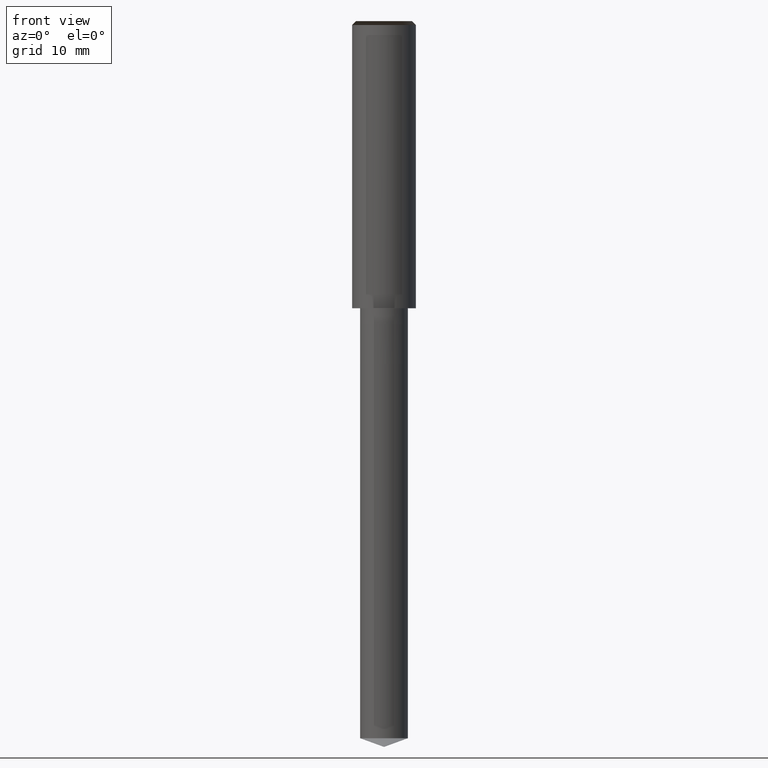
[diagram: clean part render]
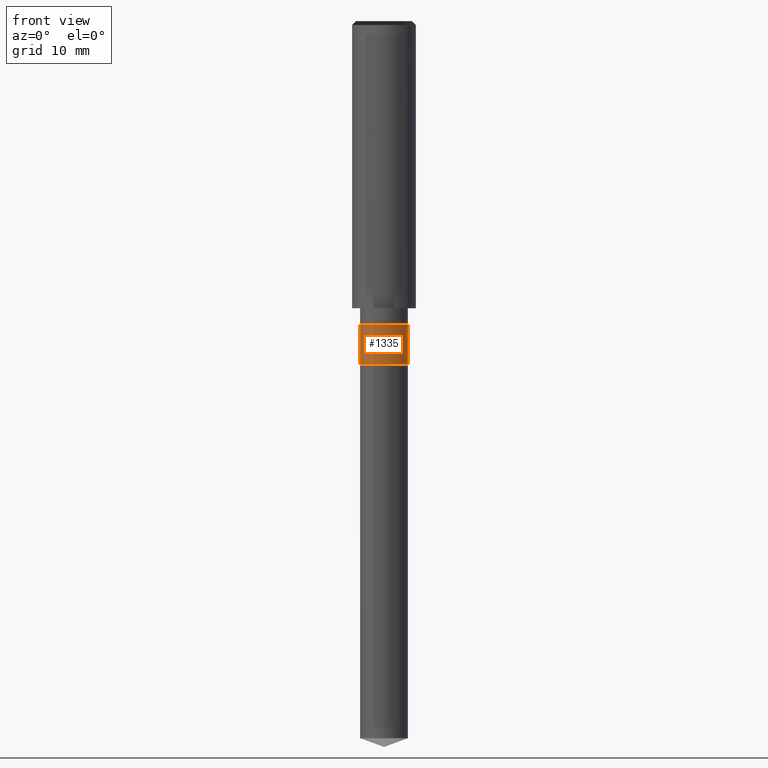
[diagram: same view with one face highlighted and labeled with its STEP entity id]
A machine part, front view. The second image highlights one B-rep face of the part: STEP entity #1335.
In plain terms, the highlighted face is a freeform B-spline surface patch.
Its self-contained STEP definition (entity closure, byte-faithful):
#1002=CARTESIAN_POINT('',(3.0,0.0,-7.0));
#1006=CARTESIAN_POINT('',(-3.0,0.0,-7.0));
#1011=CARTESIAN_POINT('',(-3.0,-3.0,-7.0));
#1012=CARTESIAN_POINT('',(0.0,-3.0,-7.0));
#1013=CARTESIAN_POINT('',(3.0,-3.0,-7.0));
#1014=CARTESIAN_POINT('',(3.0,0.0,-2.0));
#1018=CARTESIAN_POINT('',(-3.0,0.0,-2.0));
#1040=CARTESIAN_POINT('',(-3.0,-3.0,-2.0));
#1041=CARTESIAN_POINT('',(0.0,-3.0,-2.0));
#1042=CARTESIAN_POINT('',(3.0,-3.0,-2.0));
#1316=(
BOUNDED_SURFACE()
B_SPLINE_SURFACE(1,2,(
(#1006,#1011,#1012,#1013,#1002),
(#1018,#1040,#1041,#1042,#1014)
), .UNSPECIFIED.,.F.,.F.,.F.)
B_SPLINE_SURFACE_WITH_KNOTS((2,2),(3,2,3),(
0.0,1.0),(
0.0,0.5,1.0), .UNSPECIFIED.)
GEOMETRIC_REPRESENTATION_ITEM()
RATIONAL_B_SPLINE_SURFACE(((1.0,0.707106781187,1.0,0.707106781187,1.0),
(1.0,0.707106781187,1.0,0.707106781187,1.0)
))
REPRESENTATION_ITEM('')
SURFACE()
);
#1317=(
BOUNDED_CURVE()
B_SPLINE_CURVE(2,(#1002,#1013,#1012,#1011,#1006),.UNSPECIFIED.,.F.,.F.)
B_SPLINE_CURVE_WITH_KNOTS((3,2,3),
(0.0,0.5,1.0),.UNSPECIFIED.)
CURVE()
GEOMETRIC_REPRESENTATION_ITEM()
RATIONAL_B_SPLINE_CURVE((1.0,0.707106781187,1.0,0.707106781187,1.0))
REPRESENTATION_ITEM('')
);
#1318=(
BOUNDED_CURVE()
B_SPLINE_CURVE(1,(#1006,#1018),.UNSPECIFIED.,.F.,.F.)
B_SPLINE_CURVE_WITH_KNOTS((2,2),
(0.0,1.0),.UNSPECIFIED.)
CURVE()
GEOMETRIC_REPRESENTATION_ITEM()
RATIONAL_B_SPLINE_CURVE((1.0,1.0))
REPRESENTATION_ITEM('')
);
#1319=(
BOUNDED_CURVE()
B_SPLINE_CURVE(2,(#1018,#1040,#1041,#1042,#1014),.UNSPECIFIED.,.F.,.F.)
B_SPLINE_CURVE_WITH_KNOTS((3,2,3),
(0.0,0.5,1.0),.UNSPECIFIED.)
CURVE()
GEOMETRIC_REPRESENTATION_ITEM()
RATIONAL_B_SPLINE_CURVE((1.0,0.707106781187,1.0,0.707106781187,1.0))
REPRESENTATION_ITEM('')
);
#1320=(
BOUNDED_CURVE()
B_SPLINE_CURVE(1,(#1014,#1002),.UNSPECIFIED.,.F.,.F.)
B_SPLINE_CURVE_WITH_KNOTS((2,2),
(0.0,1.0),.UNSPECIFIED.)
CURVE()
GEOMETRIC_REPRESENTATION_ITEM()
RATIONAL_B_SPLINE_CURVE((1.0,1.0))
REPRESENTATION_ITEM('')
);
#1321=VERTEX_POINT('',#1002);
#1322=VERTEX_POINT('',#1006);
#1323=VERTEX_POINT('',#1014);
#1324=VERTEX_POINT('',#1018);
#1325=EDGE_CURVE('',#1321,#1322,#1317,.T.);
#1326=EDGE_CURVE('',#1322,#1324,#1318,.T.);
#1327=EDGE_CURVE('',#1324,#1323,#1319,.T.);
#1328=EDGE_CURVE('',#1323,#1321,#1320,.T.);
#1329=ORIENTED_EDGE('',*,*,#1325,.T.);
#1330=ORIENTED_EDGE('',*,*,#1326,.T.);
#1331=ORIENTED_EDGE('',*,*,#1327,.T.);
#1332=ORIENTED_EDGE('',*,*,#1328,.T.);
#1333=EDGE_LOOP('',(#1329,#1330,#1331,#1332));
#1334=FACE_OUTER_BOUND('',#1333,.T.);
#1335=ADVANCED_FACE('',(#1334),#1316,.T.);